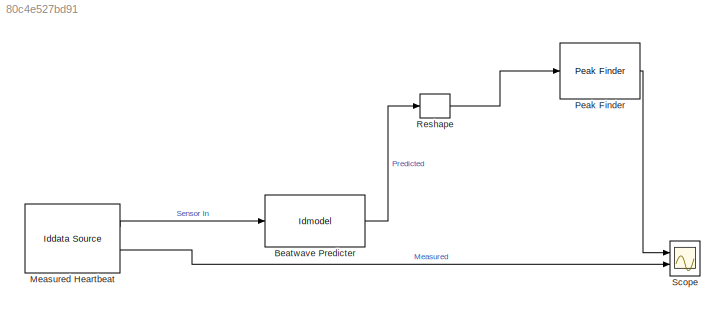
MODEL slx_80c4e527bd91
KIND model
CONFIG AbsTol = auto
CONFIG EnableMultiTasking = off
CONFIG FixedStep = auto
CONFIG MaxStep = auto
CONFIG MinStep = auto
CONFIG RelTol = 1e-3
CONFIG SampleTimeConstraint = Unconstrained
CONFIG Solver = VariableStepAuto
CONFIG SolverName = VariableStepAuto
CONFIG StartTime = 0.0
CONFIG StopTime = 120
BLOCK [Reference] Beatwave Predicter  REF=slident/Models/Idmodel  (lib defined in mdl_f7d4911ca73a)
  Ports = [1, 1]
  SourceBlock = slident/Models/Idmodel
  SourceProductBaseCode = ID
  SourceProductName = System Identification Toolbox
  SourceType = Idmodel Block
BLOCK [Reference] Measured Heartbeat  REF=slident/Iddata Source  (lib defined in mdl_f7d4911ca73a)
  Ports = [0, 2]
  SourceBlock = slident/Iddata Source
  SourceProductBaseCode = ID
  SourceProductName = System Identification Toolbox
  SourceType = Iddata InputOutput
BLOCK [Reference] Peak Finder  REF=dspsigops/Peak Finder
  Ports = [1, 1]
  SourceBlock = dspsigops/Peak Finder
  SourceProductBaseCode = DS
  SourceProductName = DSP System Toolbox
  SourceType = Peak Finder
BLOCK [Reshape] Reshape
  Ports = [1, 1]
BLOCK [Scope] Scope
  NumInputPorts = 2
  Ports = [2]
  ScopeSpecificationString = Simulink.scopes.TimeScopeBlockCfg('CurrentConfiguration', extmgr.ConfigurationSet(extmgr.Configuration('Core','General UI',true),extmgr.Configuration('Core','Source UI',true),extmgr.Configuration('Sources','WiredSimulink',true),extmgr.Configuration('Visuals','Time Domain',true,'SerializedDisplays',{struct('MinYLimReal','-22.13769','MaxYLimReal','24.94285','YLabelReal','','MinYLimMag','0.00000','Ma...<+1688ch>
LINE Beatwave Predicter:1 -> Reshape:1
LINE Measured Heartbeat:1 -> Beatwave Predicter:1
LINE Measured Heartbeat:2 -> Scope:2
LINE Peak Finder:1 -> Scope:1
LINE Reshape:1 -> Peak Finder:1
